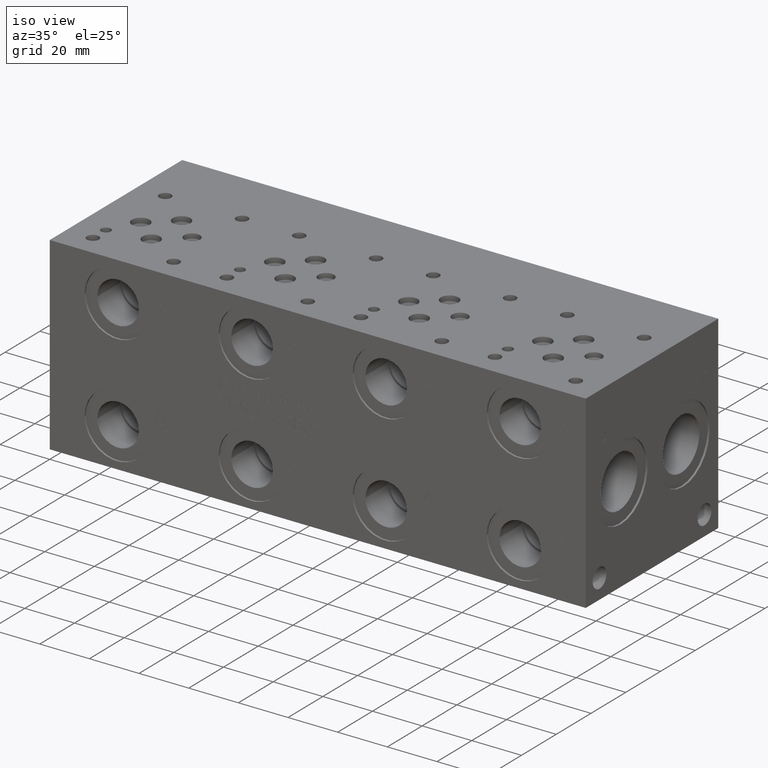
[diagram: clean part render]
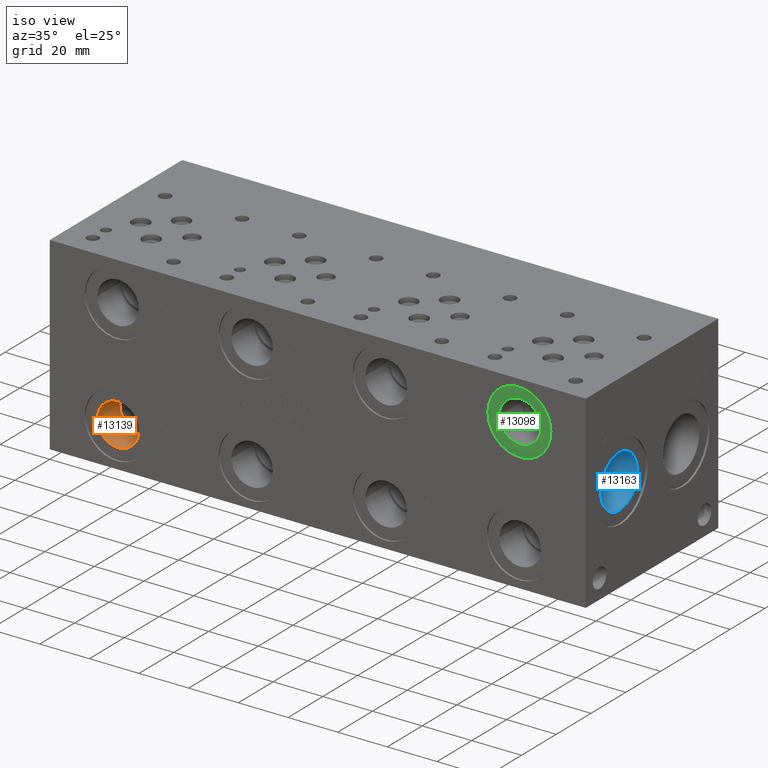
[diagram: same view with three faces highlighted in distinct colors, each labeled with its STEP entity id]
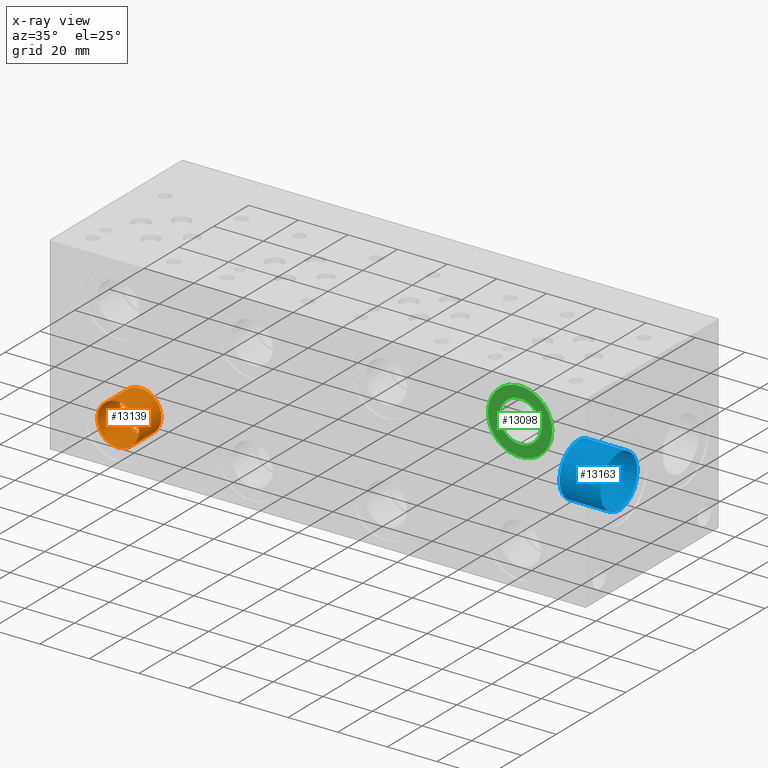
[diagram: x-ray of the same camera — body ghosted, the three highlighted faces saturated]
A machine part, iso view with three faces highlighted in distinct colors.
The next image is the same camera in x-ray (body ghosted, the three faces saturated) — at least one of them is partly hidden behind the body in this view.
Their STEP definitions:

[orange] entity #13139 — the highlighted cylindrical surface (bore or boss wall) has radius 8.382 mm, axis along (0, 1, 0).
#91=CYLINDRICAL_SURFACE('',#13928,8.382);
#360=CIRCLE('',#13927,8.382);
#361=CIRCLE('',#13929,8.382);
#1600=FACE_OUTER_BOUND('',#2429,.T.);
#2429=EDGE_LOOP('',(#11264,#11265,#11266,#11267));
#3786=LINE('',#22036,#5068);
#5068=VECTOR('',#16682,8.382);
#6231=VERTEX_POINT('',#22032);
#6232=VERTEX_POINT('',#22035);
#7941=EDGE_CURVE('',#6231,#6231,#360,.T.);
#7942=EDGE_CURVE('',#6231,#6232,#3786,.T.);
#7943=EDGE_CURVE('',#6232,#6232,#361,.T.);
#11264=ORIENTED_EDGE('',*,*,#7941,.F.);
#11265=ORIENTED_EDGE('',*,*,#7942,.T.);
#11266=ORIENTED_EDGE('',*,*,#7943,.T.);
#11267=ORIENTED_EDGE('',*,*,#7942,.F.);
#13139=ADVANCED_FACE('',(#1600),#91,.F.);
#13927=AXIS2_PLACEMENT_3D('',#22033,#16678,#16679);
#13928=AXIS2_PLACEMENT_3D('',#22034,#16680,#16681);
#13929=AXIS2_PLACEMENT_3D('',#22037,#16683,#16684);
#16678=DIRECTION('center_axis',(0.,1.,0.));
#16679=DIRECTION('ref_axis',(1.,0.,0.));
#16680=DIRECTION('center_axis',(0.,1.,0.));
#16681=DIRECTION('ref_axis',(1.,0.,0.));
#16682=DIRECTION('',(0.,1.,0.));
#16683=DIRECTION('center_axis',(0.,1.,0.));
#16684=DIRECTION('ref_axis',(1.,0.,0.));
#22032=CARTESIAN_POINT('',(18.5928,0.7874,15.875));
#22033=CARTESIAN_POINT('Origin',(26.9748,0.7874,15.875));
#22034=CARTESIAN_POINT('Origin',(26.9748,7.2771,15.875));
#22035=CARTESIAN_POINT('',(18.5928,13.7668,15.875));
#22036=CARTESIAN_POINT('',(18.5928,7.2771,15.875));
#22037=CARTESIAN_POINT('Origin',(26.9748,13.7668,15.875));

[blue] entity #13163 — the highlighted cylindrical surface (bore or boss wall) has radius 10.5283 mm, axis along (-1, 0, 0).
#103=CYLINDRICAL_SURFACE('',#13972,10.5283);
#380=CIRCLE('',#13971,10.5283);
#381=CIRCLE('',#13973,10.5283);
#1624=FACE_OUTER_BOUND('',#2459,.T.);
#2459=EDGE_LOOP('',(#11344,#11345,#11346,#11347));
#3804=LINE('',#22122,#5086);
#5086=VECTOR('',#16788,10.5283);
#6255=VERTEX_POINT('',#22118);
#6256=VERTEX_POINT('',#22121);
#7979=EDGE_CURVE('',#6255,#6255,#380,.T.);
#7980=EDGE_CURVE('',#6255,#6256,#3804,.T.);
#7981=EDGE_CURVE('',#6256,#6256,#381,.T.);
#11344=ORIENTED_EDGE('',*,*,#7979,.F.);
#11345=ORIENTED_EDGE('',*,*,#7980,.T.);
#11346=ORIENTED_EDGE('',*,*,#7981,.T.);
#11347=ORIENTED_EDGE('',*,*,#7980,.F.);
#13163=ADVANCED_FACE('',(#1624),#103,.F.);
#13971=AXIS2_PLACEMENT_3D('',#22119,#16784,#16785);
#13972=AXIS2_PLACEMENT_3D('',#22120,#16786,#16787);
#13973=AXIS2_PLACEMENT_3D('',#22123,#16789,#16790);
#16784=DIRECTION('center_axis',(-1.,0.,0.));
#16785=DIRECTION('ref_axis',(0.,0.,1.));
#16786=DIRECTION('center_axis',(-1.,0.,0.));
#16787=DIRECTION('ref_axis',(0.,0.,-1.));
#16788=DIRECTION('',(-1.,0.,0.));
#16789=DIRECTION('center_axis',(-1.,0.,0.));
#16790=DIRECTION('ref_axis',(0.,0.,1.));
#22118=CARTESIAN_POINT('',(215.1126,20.2438,48.6283));
#22119=CARTESIAN_POINT('Origin',(215.1126,20.2438,38.1));
#22120=CARTESIAN_POINT('Origin',(206.8195,20.2438,38.1));
#22121=CARTESIAN_POINT('',(198.5264,20.2438,48.6283));
#22122=CARTESIAN_POINT('',(206.8195,20.2438,48.6283));
#22123=CARTESIAN_POINT('Origin',(198.5264,20.2438,38.1));

[green] entity #13098 — the highlighted planar face has unit normal (0, 1, 0).
#324=CIRCLE('',#13850,12.9667);
#325=CIRCLE('',#13852,8.38200000000001);
#512=FACE_BOUND('',#2378,.T.);
#1559=FACE_OUTER_BOUND('',#2377,.T.);
#2377=EDGE_LOOP('',(#11127));
#2378=EDGE_LOOP('',(#11128));
#6190=VERTEX_POINT('',#21883);
#6191=VERTEX_POINT('',#21887);
#7875=EDGE_CURVE('',#6190,#6190,#324,.T.);
#7876=EDGE_CURVE('',#6191,#6191,#325,.T.);
#11127=ORIENTED_EDGE('',*,*,#7875,.F.);
#11128=ORIENTED_EDGE('',*,*,#7876,.T.);
#11976=PLANE('',#13851);
#13098=ADVANCED_FACE('',(#1559,#512),#11976,.F.);
#13850=AXIS2_PLACEMENT_3D('',#21885,#16494,#16495);
#13851=AXIS2_PLACEMENT_3D('',#21886,#16496,#16497);
#13852=AXIS2_PLACEMENT_3D('',#21888,#16498,#16499);
#16494=DIRECTION('center_axis',(0.,1.,0.));
#16495=DIRECTION('ref_axis',(1.,0.,0.));
#16496=DIRECTION('center_axis',(0.,1.,0.));
#16497=DIRECTION('ref_axis',(0.,0.,1.));
#16498=DIRECTION('center_axis',(0.,1.,0.));
#16499=DIRECTION('ref_axis',(1.,0.,0.));
#21883=CARTESIAN_POINT('',(175.9331,0.7874,60.325));
#21885=CARTESIAN_POINT('Origin',(188.8998,0.7874,60.325));
#21886=CARTESIAN_POINT('Origin',(197.2818,0.7874,60.325));
#21887=CARTESIAN_POINT('',(180.5178,0.7874,60.325));
#21888=CARTESIAN_POINT('Origin',(188.8998,0.7874,60.325));